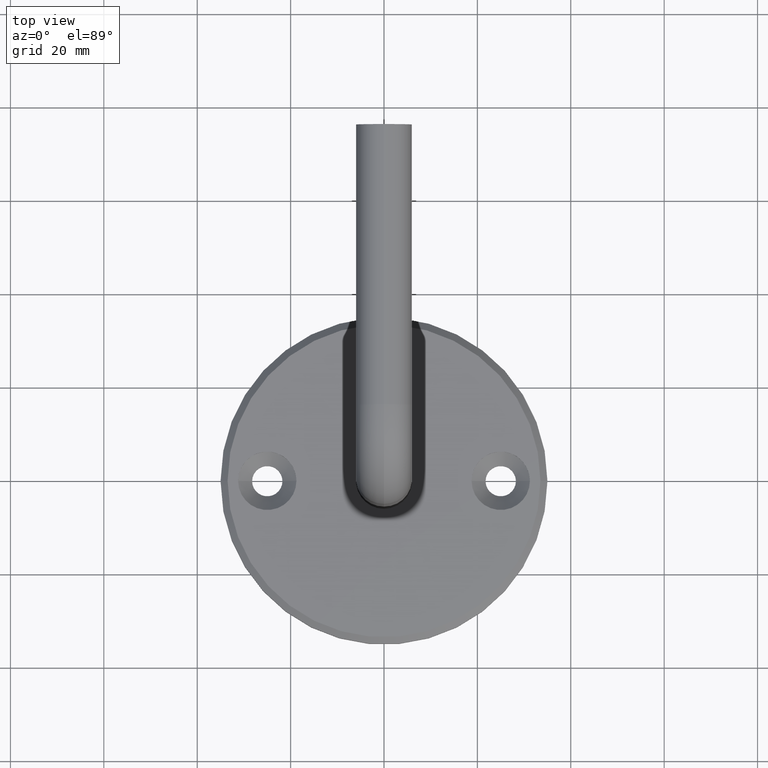
[diagram: clean part render]
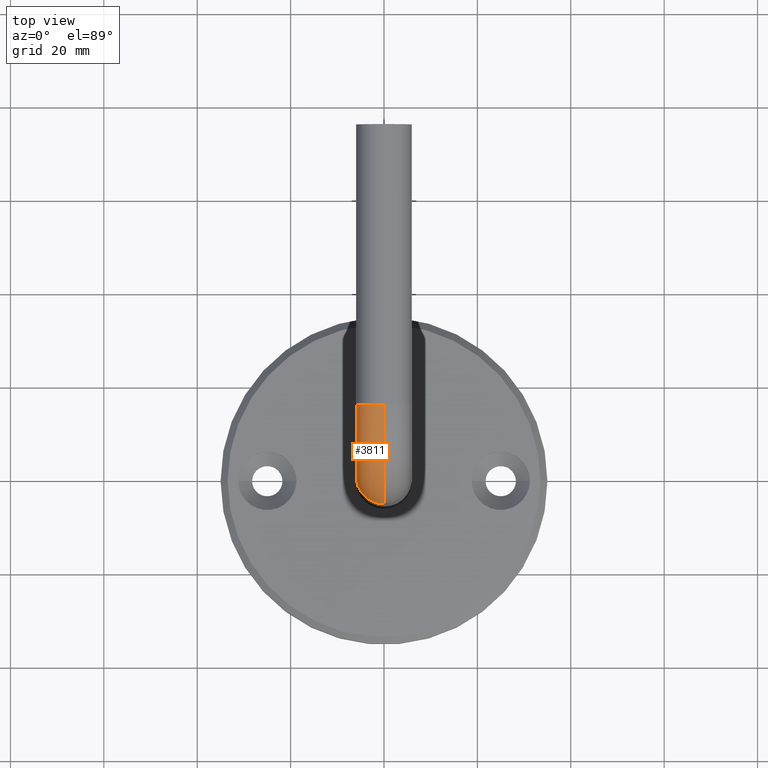
[diagram: same view with one face highlighted and labeled with its STEP entity id]
A machine part, top view. The second image highlights one B-rep face of the part: STEP entity #3811.
In plain terms, the highlighted toroidal blend (fillet) surface has major radius 15 mm and minor (blend) radius 6 mm.
Its self-contained STEP definition (entity closure, byte-faithful):
#49 = CARTESIAN_POINT ( 'NONE',  ( 0.000000000000000000, 15.00000000000000000, -75.00000000000000000 ) ) ;
#110 = DIRECTION ( 'NONE',  ( 0.000000000000000000, 0.000000000000000000, -1.000000000000000000 ) ) ;
#373 = EDGE_CURVE ( 'NONE', #11384, #3805, #7082, .T. ) ;
#446 = EDGE_LOOP ( 'NONE', ( #5527, #727, #5374, #14795 ) ) ;
#534 = DIRECTION ( 'NONE',  ( 0.000000000000000000, 0.000000000000000000, -1.000000000000000000 ) ) ;
#727 = ORIENTED_EDGE ( 'NONE', *, *, #4704, .T. ) ;
#1705 = AXIS2_PLACEMENT_3D ( 'NONE', #12595, #10081, #110 ) ;
#1789 = DIRECTION ( 'NONE',  ( 1.000000000000000000, -0.000000000000000000, -0.000000000000000000 ) ) ;
#1980 = CARTESIAN_POINT ( 'NONE',  ( 0.000000000000000000, 5.999999999999986677, -60.00000000000000000 ) ) ;
#2862 = DIRECTION ( 'NONE',  ( 0.000000000000000000, 0.000000000000000000, -1.000000000000000000 ) ) ;
#3049 = VERTEX_POINT ( 'NONE', #1980 ) ;
#3106 = AXIS2_PLACEMENT_3D ( 'NONE', #49, #8637, #8864 ) ;
#3263 = AXIS2_PLACEMENT_3D ( 'NONE', #10313, #7963, #11710 ) ;
#3643 = CIRCLE ( 'NONE', #3263, 6.000000000000000888 ) ;
#3718 = EDGE_CURVE ( 'NONE', #3049, #3805, #7545, .T. ) ;
#3805 = VERTEX_POINT ( 'NONE', #12901 ) ;
#3811 = ADVANCED_FACE ( 'NONE', ( #10479 ), #14325, .T. ) ;
#4156 = AXIS2_PLACEMENT_3D ( 'NONE', #10500, #4196, #534 ) ;
#4196 = DIRECTION ( 'NONE',  ( 1.000000000000000000, -0.000000000000000000, -0.000000000000000000 ) ) ;
#4704 = EDGE_CURVE ( 'NONE', #9069, #11384, #8307, .T. ) ;
#5374 = ORIENTED_EDGE ( 'NONE', *, *, #373, .T. ) ;
#5527 = ORIENTED_EDGE ( 'NONE', *, *, #8484, .F. ) ;
#7082 = CIRCLE ( 'NONE', #3106, 6.000000000000000888 ) ;
#7385 = CARTESIAN_POINT ( 'NONE',  ( 7.347880794884127625E-16, -6.000000000000015099, -60.00000000000000000 ) ) ;
#7545 = CIRCLE ( 'NONE', #10673, 9.000000000000007105 ) ;
#7798 = CARTESIAN_POINT ( 'NONE',  ( 7.347880794884114806E-16, 15.00000000000000178, -81.00000000000000000 ) ) ;
#7963 = DIRECTION ( 'NONE',  ( 0.000000000000000000, 0.000000000000000000, 1.000000000000000000 ) ) ;
#8307 = CIRCLE ( 'NONE', #1705, 21.00000000000000355 ) ;
#8484 = EDGE_CURVE ( 'NONE', #9069, #3049, #3643, .T. ) ;
#8637 = DIRECTION ( 'NONE',  ( 0.000000000000000000, -1.000000000000000000, -2.312964634635742957E-16 ) ) ;
#8864 = DIRECTION ( 'NONE',  ( 1.000000000000000000, 0.000000000000000000, 0.000000000000000000 ) ) ;
#9069 = VERTEX_POINT ( 'NONE', #7385 ) ;
#9154 = CARTESIAN_POINT ( 'NONE',  ( -7.347880794884120722E-16, 15.00000000000000000, -60.00000000000000000 ) ) ;
#10081 = DIRECTION ( 'NONE',  ( 1.000000000000000000, -0.000000000000000000, -0.000000000000000000 ) ) ;
#10313 = CARTESIAN_POINT ( 'NONE',  ( 0.000000000000000000, -1.387778780781445676E-14, -60.00000000000000000 ) ) ;
#10479 = FACE_OUTER_BOUND ( 'NONE', #446, .T. ) ;
#10500 = CARTESIAN_POINT ( 'NONE',  ( 0.000000000000000000, 15.00000000000000000, -60.00000000000000000 ) ) ;
#10673 = AXIS2_PLACEMENT_3D ( 'NONE', #9154, #1789, #2862 ) ;
#11384 = VERTEX_POINT ( 'NONE', #7798 ) ;
#11710 = DIRECTION ( 'NONE',  ( 1.000000000000000000, 0.000000000000000000, 0.000000000000000000 ) ) ;
#12595 = CARTESIAN_POINT ( 'NONE',  ( 0.000000000000000000, 15.00000000000000000, -60.00000000000000000 ) ) ;
#12901 = CARTESIAN_POINT ( 'NONE',  ( 0.000000000000000000, 14.99999999999999822, -68.99999999999998579 ) ) ;
#14325 = TOROIDAL_SURFACE ( 'NONE', #4156, 15.00000000000000711, 6.000000000000000888 ) ;
#14795 = ORIENTED_EDGE ( 'NONE', *, *, #3718, .F. ) ;